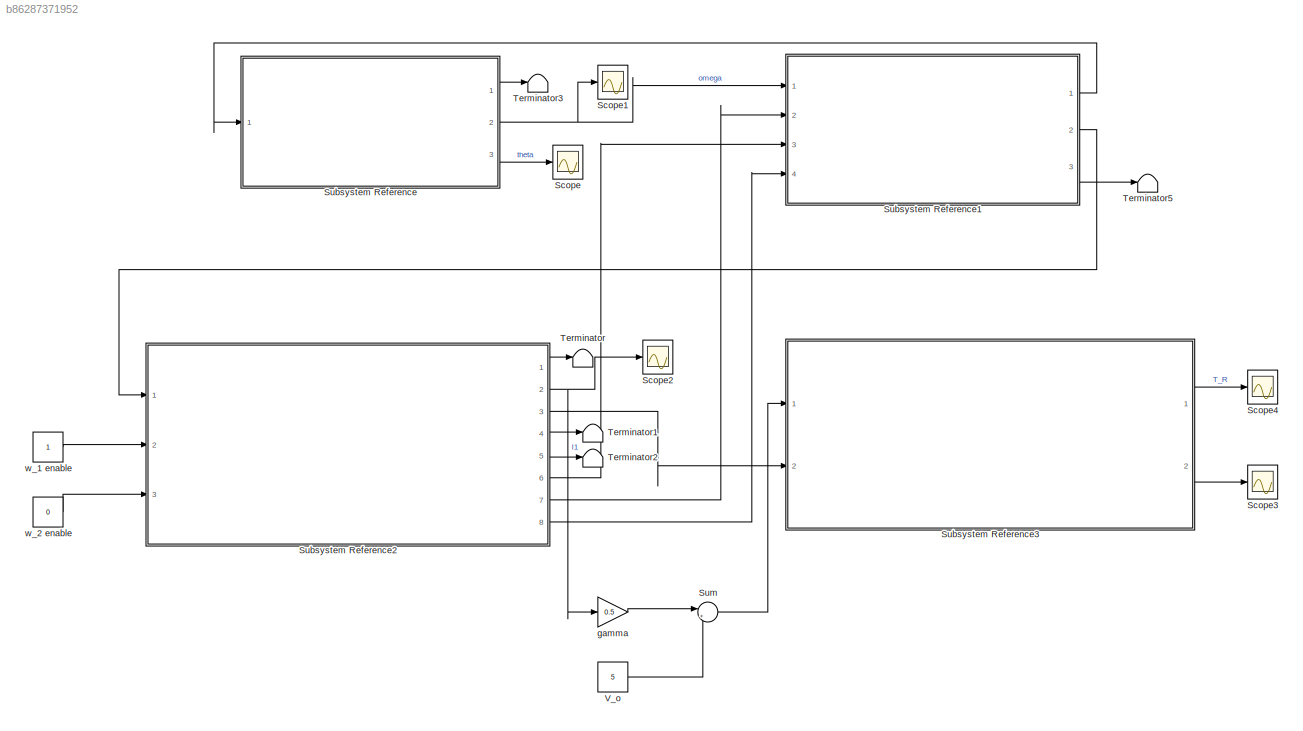
MODEL slx_b86287371952
KIND model
CONFIG AbsTol = auto
CONFIG EnableMultiTasking = off
CONFIG FixedStep = 1e-4
CONFIG MaxStep = auto
CONFIG MinStep = auto
CONFIG RelTol = 1e-3
CONFIG SampleTimeConstraint = Unconstrained
CONFIG SolverName = FixedStepAuto
CONFIG StartTime = 0.0
CONFIG StopTime = 10.0
BLOCK [Scope] Scope
  Floating = off
  NumInputPorts = 1
  Ports = [1]
  ScopeSpecificationString = Simulink.scopes.TimeScopeBlockCfg('CurrentConfiguration', extmgr.ConfigurationSet(extmgr.Configuration('Core','General UI',true),extmgr.Configuration('Core','Source UI',true),extmgr.Configuration('Sources','WiredSimulink',true),extmgr.Configuration('Visuals','Time Domain',true,'SerializedDisplays',{struct('MinYLimReal','-0.70783','MaxYLimReal','0.82704','YLabelReal','','MinYLimMag','0.00000','MaxY...<+1331ch>
BLOCK [Scope] Scope1
  Floating = off
  NumInputPorts = 1
  Ports = [1]
  ScopeSpecificationString = Simulink.scopes.TimeScopeBlockCfg('CurrentConfiguration', extmgr.ConfigurationSet(extmgr.Configuration('Core','General UI',true),extmgr.Configuration('Core','Source UI',true),extmgr.Configuration('Sources','WiredSimulink',true,'DataLoggingVariableName','ScopeData1'),extmgr.Configuration('Visuals','Time Domain',true,'SerializedDisplays',{struct('MinYLimReal','-0.00339','MaxYLimReal','0.03048','YLab...<+1361ch>
BLOCK [Scope] Scope2
  Floating = off
  NumInputPorts = 1
  Ports = [1]
  ScopeSpecificationString = Simulink.scopes.TimeScopeBlockCfg('CurrentConfiguration', extmgr.ConfigurationSet(extmgr.Configuration('Core','General UI',true),extmgr.Configuration('Core','Source UI',true),extmgr.Configuration('Sources','WiredSimulink',true,'DataLoggingVariableName','ScopeData2'),extmgr.Configuration('Visuals','Time Domain',true,'SerializedDisplays',{struct('MinYLimReal','9.94983','MaxYLimReal','10.45154','YLab...<+1383ch>
BLOCK [Scope] Scope3
  Floating = off
  NumInputPorts = 1
  Ports = [1]
  ScopeSpecificationString = Simulink.scopes.TimeScopeBlockCfg('CurrentConfiguration', extmgr.ConfigurationSet(extmgr.Configuration('Core','General UI',true),extmgr.Configuration('Core','Source UI',true),extmgr.Configuration('Sources','WiredSimulink',true,'DataLoggingVariableName','ScopeData3'),extmgr.Configuration('Visuals','Time Domain',true,'SerializedDisplays',{struct('MinYLimReal','-0.00403','MaxYLimReal','0.03629','YLab...<+1381ch>
BLOCK [Scope] Scope4
  Floating = off
  NumInputPorts = 1
  Ports = [1]
  ScopeSpecificationString = Simulink.scopes.TimeScopeBlockCfg('CurrentConfiguration', extmgr.ConfigurationSet(extmgr.Configuration('Core','General UI',true),extmgr.Configuration('Core','Source UI',true),extmgr.Configuration('Sources','WiredSimulink',true,'DataLoggingVariableName','ScopeData1'),extmgr.Configuration('Visuals','Time Domain',true,'SerializedDisplays',{struct('MinYLimReal','-0.00403','MaxYLimReal','0.03629','YLab...<+1381ch>
BLOCK [SubSystem] Subsystem Reference
  Ports = [1, 3]
  ReferencedSubsystem = Pendulum
  RequestExecContextInheritance = off
BLOCK [SubSystem] Subsystem Reference1
  Ports = [4, 3]
  ReferencedSubsystem = Motor_circuit
  RequestExecContextInheritance = off
BLOCK [SubSystem] Subsystem Reference2
  Ports = [3, 8]
  ReferencedSubsystem = Tank_system
  RequestExecContextInheritance = off
BLOCK [SubSystem] Subsystem Reference3
  Ports = [2, 2]
  ReferencedSubsystem = Dissipator_circuit
  RequestExecContextInheritance = off
BLOCK [Sum] Sum
  Inputs = |++
  Ports = [2, 1]
BLOCK [Terminator] Terminator
BLOCK [Terminator] Terminator1
BLOCK [Terminator] Terminator2
BLOCK [Terminator] Terminator3
BLOCK [Terminator] Terminator5
BLOCK [Constant] V_o
  Value = 5
BLOCK [Gain] gamma
  Gain = 0.5
BLOCK [Constant] w_1 enable
BLOCK [Constant] w_2 enable
  Value = 0
LINE Subsystem Reference1:1 -> Subsystem Reference:1
LINE Subsystem Reference1:2 -> Subsystem Reference2:1
LINE Subsystem Reference1:3 -> Terminator5:1
LINE Subsystem Reference2:1 -> Terminator:1
NET Subsystem Reference2:2 -> Scope2:1, gamma:1
LINE Subsystem Reference2:3 -> Subsystem Reference3:2
LINE Subsystem Reference2:4 -> Terminator1:1
LINE Subsystem Reference2:5 -> Terminator2:1
LINE Subsystem Reference2:6 -> Subsystem Reference1:3
LINE Subsystem Reference2:7 -> Subsystem Reference1:2
LINE Subsystem Reference2:8 -> Subsystem Reference1:4
LINE Subsystem Reference3:1 -> Scope4:1
LINE Subsystem Reference3:2 -> Scope3:1
LINE Subsystem Reference:1 -> Terminator3:1
NET Subsystem Reference:2 -> Scope1:1, Subsystem Reference1:1
LINE Subsystem Reference:3 -> Scope:1
LINE Sum:1 -> Subsystem Reference3:1
LINE V_o:1 -> Sum:2
LINE gamma:1 -> Sum:1
LINE w_1 enable:1 -> Subsystem Reference2:2
LINE w_2 enable:1 -> Subsystem Reference2:3
note: NET lines group one-source signal fan-out (src -> all destinations, sorted); 1:1 wires keep LINE
